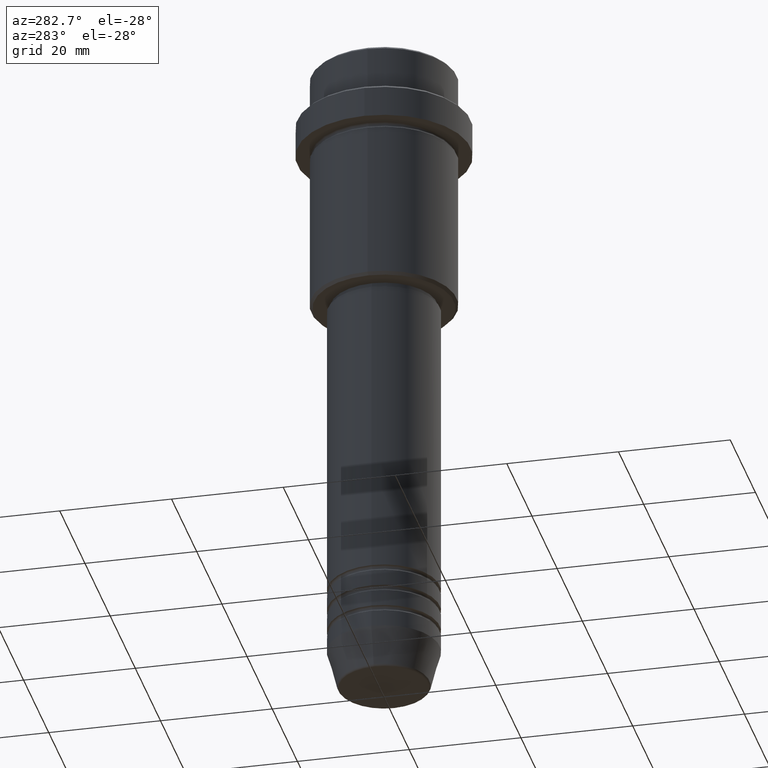
[diagram: clean part render]
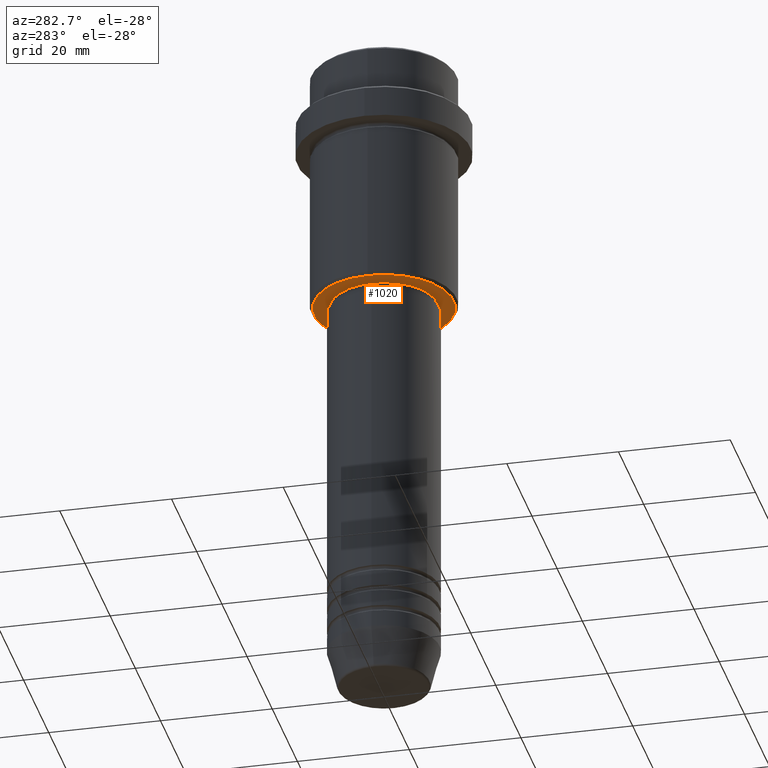
[diagram: same view with one face highlighted and labeled with its STEP entity id]
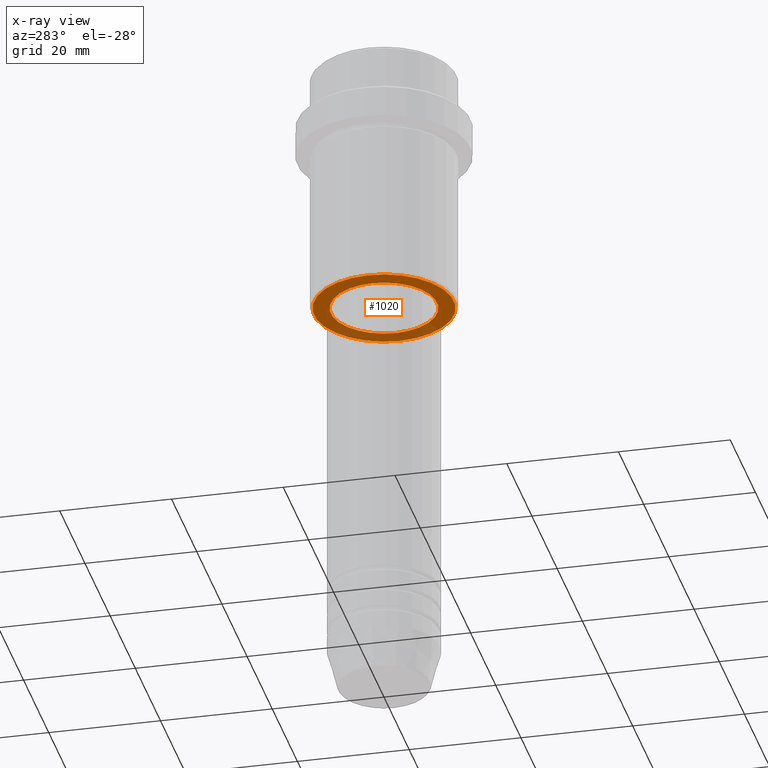
[diagram: x-ray of the same camera — body ghosted, the highlighted face saturated]
A machine part, auxiliary view. The second image highlights one B-rep face of the part: STEP entity #1020.
The next image is the same camera in x-ray: the body ghosted, the highlighted face saturated — about 29% of this face is hidden behind the body in this view.
In plain terms, the highlighted planar face has unit normal (0, 0, -1).
Its self-contained STEP definition (entity closure, byte-faithful):
#36 = CARTESIAN_POINT ( 'NONE',  ( 0.000000000000000000, 0.000000000000000000, -44.99999999999999289 ) ) ;
#54 = CARTESIAN_POINT ( 'NONE',  ( 9.499999999999996447, 0.000000000000000000, -44.99999999999999289 ) ) ;
#83 = AXIS2_PLACEMENT_3D ( 'NONE', #1111, #972, #1400 ) ;
#117 = EDGE_CURVE ( 'NONE', #371, #865, #1136, .T. ) ;
#225 = AXIS2_PLACEMENT_3D ( 'NONE', #429, #554, #944 ) ;
#304 = ORIENTED_EDGE ( 'NONE', *, *, #766, .T. ) ;
#343 = CIRCLE ( 'NONE', #760, 12.49999999999999645 ) ;
#369 = DIRECTION ( 'NONE',  ( -0.000000000000000000, -0.000000000000000000, 1.000000000000000000 ) ) ;
#371 = VERTEX_POINT ( 'NONE', #844 ) ;
#429 = CARTESIAN_POINT ( 'NONE',  ( 0.000000000000000000, 0.000000000000000000, -45.00000000000000000 ) ) ;
#439 = FACE_OUTER_BOUND ( 'NONE', #979, .T. ) ;
#500 = CARTESIAN_POINT ( 'NONE',  ( -12.49999999999999645, 1.561424668912875111E-15, -45.00000000000000000 ) ) ;
#549 = PLANE ( 'NONE',  #83 ) ;
#554 = DIRECTION ( 'NONE',  ( 0.000000000000000000, 0.000000000000000000, -1.000000000000000000 ) ) ;
#562 = DIRECTION ( 'NONE',  ( 1.000000000000000000, 0.000000000000000000, 0.000000000000000000 ) ) ;
#565 = CARTESIAN_POINT ( 'NONE',  ( 0.000000000000000000, 0.000000000000000000, -45.00000000000000000 ) ) ;
#584 = CARTESIAN_POINT ( 'NONE',  ( 0.000000000000000000, 0.000000000000000000, -44.99999999999999289 ) ) ;
#659 = VERTEX_POINT ( 'NONE', #500 ) ;
#675 = FACE_BOUND ( 'NONE', #1059, .T. ) ;
#684 = VERTEX_POINT ( 'NONE', #798 ) ;
#750 = CIRCLE ( 'NONE', #225, 12.49999999999999645 ) ;
#760 = AXIS2_PLACEMENT_3D ( 'NONE', #565, #1411, #769 ) ;
#766 = EDGE_CURVE ( 'NONE', #684, #659, #343, .T. ) ;
#769 = DIRECTION ( 'NONE',  ( -1.000000000000000000, 0.000000000000000000, 0.000000000000000000 ) ) ;
#798 = CARTESIAN_POINT ( 'NONE',  ( 12.49999999999999645, 0.000000000000000000, -45.00000000000000000 ) ) ;
#844 = CARTESIAN_POINT ( 'NONE',  ( -9.499999999999996447, 1.163414459189985091E-15, -44.99999999999999289 ) ) ;
#865 = VERTEX_POINT ( 'NONE', #54 ) ;
#896 = ORIENTED_EDGE ( 'NONE', *, *, #1221, .T. ) ;
#944 = DIRECTION ( 'NONE',  ( -1.000000000000000000, 0.000000000000000000, 0.000000000000000000 ) ) ;
#972 = DIRECTION ( 'NONE',  ( 0.000000000000000000, 0.000000000000000000, -1.000000000000000000 ) ) ;
#973 = ORIENTED_EDGE ( 'NONE', *, *, #1105, .T. ) ;
#979 = EDGE_LOOP ( 'NONE', ( #304, #896 ) ) ;
#1020 = ADVANCED_FACE ( 'NONE', ( #439, #675 ), #549, .T. ) ;
#1028 = AXIS2_PLACEMENT_3D ( 'NONE', #584, #369, #562 ) ;
#1055 = ORIENTED_EDGE ( 'NONE', *, *, #117, .T. ) ;
#1059 = EDGE_LOOP ( 'NONE', ( #973, #1055 ) ) ;
#1105 = EDGE_CURVE ( 'NONE', #865, #371, #1414, .T. ) ;
#1111 = CARTESIAN_POINT ( 'NONE',  ( 0.000000000000000000, 13.00000000000000000, -45.00000000000000000 ) ) ;
#1136 = CIRCLE ( 'NONE', #1028, 9.499999999999996447 ) ;
#1157 = DIRECTION ( 'NONE',  ( -0.000000000000000000, -0.000000000000000000, 1.000000000000000000 ) ) ;
#1221 = EDGE_CURVE ( 'NONE', #659, #684, #750, .T. ) ;
#1238 = AXIS2_PLACEMENT_3D ( 'NONE', #36, #1157, #1271 ) ;
#1271 = DIRECTION ( 'NONE',  ( 1.000000000000000000, 0.000000000000000000, 0.000000000000000000 ) ) ;
#1400 = DIRECTION ( 'NONE',  ( -1.000000000000000000, 0.000000000000000000, -0.000000000000000000 ) ) ;
#1411 = DIRECTION ( 'NONE',  ( 0.000000000000000000, 0.000000000000000000, -1.000000000000000000 ) ) ;
#1414 = CIRCLE ( 'NONE', #1238, 9.499999999999996447 ) ;